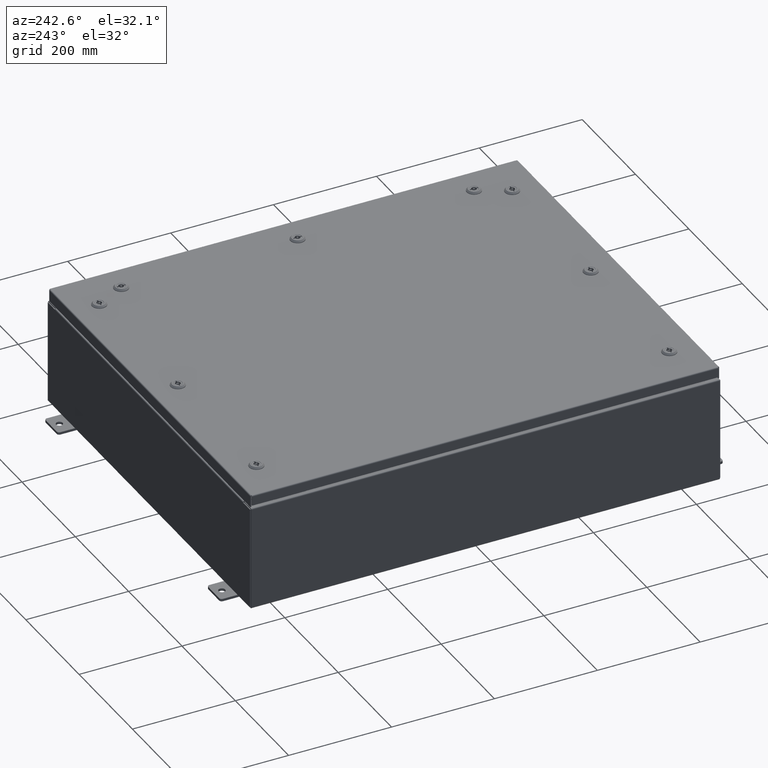
[diagram: clean part render]
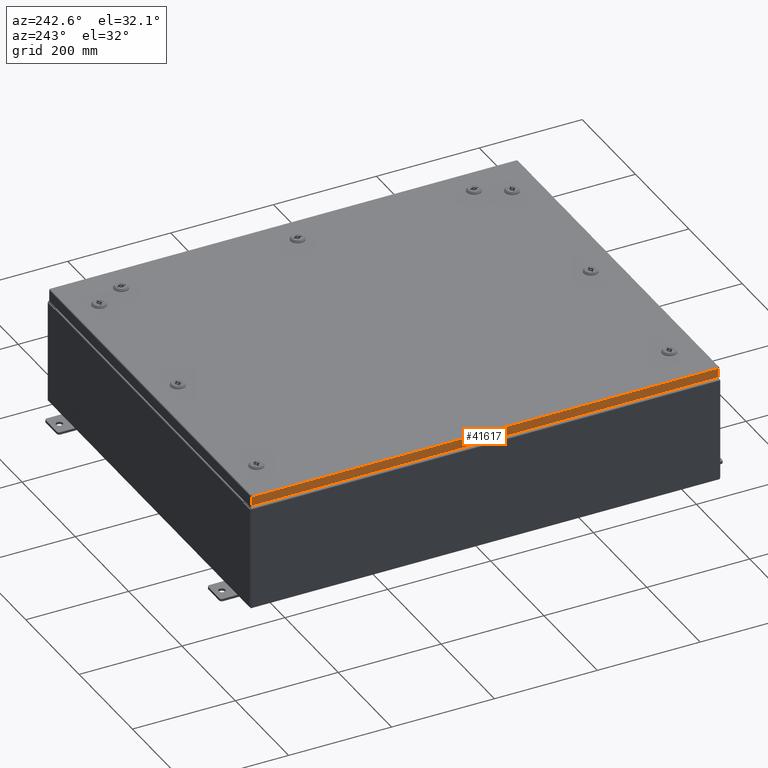
[diagram: same view with one face highlighted and labeled with its STEP entity id]
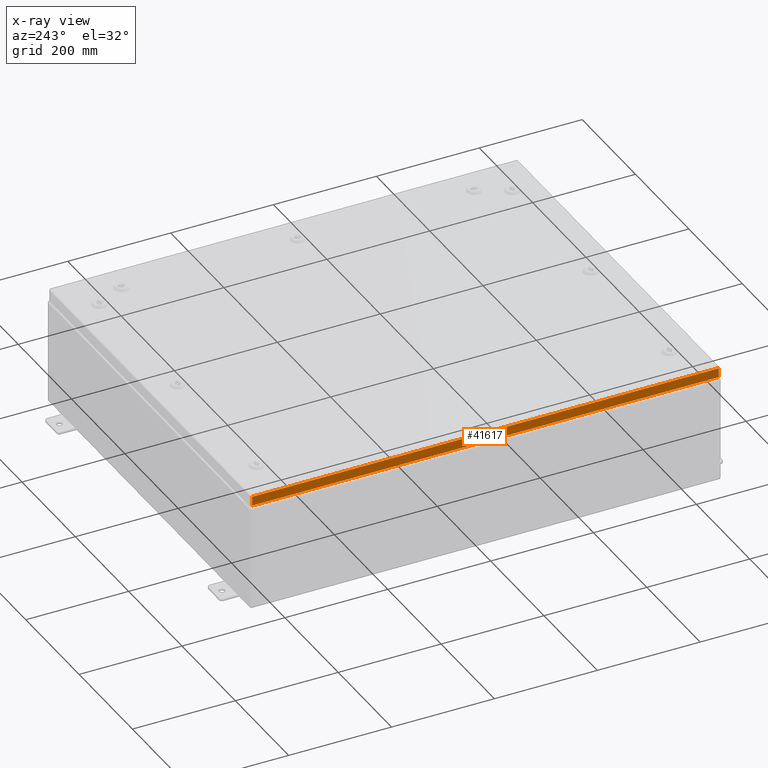
[diagram: x-ray of the same camera — body ghosted, the highlighted face saturated]
A machine part, auxiliary view. The second image highlights one B-rep face of the part: STEP entity #41617.
The next image is the same camera in x-ray: the body ghosted, the highlighted face saturated — about 0% of this face is hidden behind the body in this view.
In plain terms, the highlighted planar face has unit normal (1, 0, -0).
Its self-contained STEP definition (entity closure, byte-faithful):
#2132 = DIRECTION ( 'NONE',  ( 1.000000000000000000, 3.696729780873900900E-031, -3.034122441942816500E-015 ) ) ;
#4301 = DIRECTION ( 'NONE',  ( -4.379057701015054300E-047, 1.000000000000000000, 1.218385167906012900E-016 ) ) ;
#6069 = VECTOR ( 'NONE', #19628, 39.37007874015748100 ) ;
#7296 = EDGE_CURVE ( 'NONE', #50486, #60710, #38860, .T. ) ;
#9512 = ORIENTED_EDGE ( 'NONE', *, *, #32842, .F. ) ;
#11462 = EDGE_CURVE ( 'NONE', #50486, #41567, #21168, .T. ) ;
#13489 = VECTOR ( 'NONE', #17901, 39.37007874015748100 ) ;
#14229 = LINE ( 'NONE', #34263, #56430 ) ;
#14799 = LINE ( 'NONE', #39862, #26685 ) ;
#17901 = DIRECTION ( 'NONE',  ( 3.696729780873900900E-031, -1.000000000000000000, -1.089726516288665400E-045 ) ) ;
#19628 = DIRECTION ( 'NONE',  ( -3.034122441942816500E-015, 6.982962677686267500E-015, -1.000000000000000000 ) ) ;
#19968 = CARTESIAN_POINT ( 'NONE',  ( -14.93750000000000200, -17.93750000000000000, -0.08770000000000004200 ) ) ;
#21168 = LINE ( 'NONE', #50379, #6069 ) ;
#22909 = ORIENTED_EDGE ( 'NONE', *, *, #63815, .F. ) ;
#26337 = FACE_OUTER_BOUND ( 'NONE', #46528, .T. ) ;
#26685 = VECTOR ( 'NONE', #4301, 39.37007874015748100 ) ;
#28162 = ORIENTED_EDGE ( 'NONE', *, *, #11462, .T. ) ;
#31272 = ORIENTED_EDGE ( 'NONE', *, *, #7296, .F. ) ;
#32558 = CARTESIAN_POINT ( 'NONE',  ( -14.93750000000000200, -5.521990110180389400E-030, 4.558301763253240900E-014 ) ) ;
#32842 = EDGE_CURVE ( 'NONE', #60710, #65368, #14229, .T. ) ;
#34263 = CARTESIAN_POINT ( 'NONE',  ( -14.93750000000000200, -17.84865786437627100, -0.07469999999999976700 ) ) ;
#37227 = CARTESIAN_POINT ( 'NONE',  ( -14.93750000000000400, 17.84865786437627500, -0.7949999999999954900 ) ) ;
#37668 = DIRECTION ( 'NONE',  ( -3.034122441942816500E-015, 0.0000000000000000000, -1.000000000000000000 ) ) ;
#38860 = LINE ( 'NONE', #19968, #13489 ) ;
#39862 = CARTESIAN_POINT ( 'NONE',  ( -14.93750000000000400, -17.93750000000000000, -0.7949999999999997100 ) ) ;
#41567 = VERTEX_POINT ( 'NONE', #37227 ) ;
#41617 = ADVANCED_FACE ( 'NONE', ( #26337 ), #63078, .F. ) ;
#46528 = EDGE_LOOP ( 'NONE', ( #31272, #28162, #22909, #9512 ) ) ;
#47498 = CARTESIAN_POINT ( 'NONE',  ( -14.93750000000000200, -17.84865786437626800, -0.08770000000000007000 ) ) ;
#50379 = CARTESIAN_POINT ( 'NONE',  ( -14.93750000000000200, 17.84865786437626800, 1.702195293462633700E-013 ) ) ;
#50486 = VERTEX_POINT ( 'NONE', #53515 ) ;
#53515 = CARTESIAN_POINT ( 'NONE',  ( -14.93750000000000200, 17.84865786437626800, -0.08770000000000004200 ) ) ;
#56430 = VECTOR ( 'NONE', #64792, 39.37007874015748100 ) ;
#60710 = VERTEX_POINT ( 'NONE', #47498 ) ;
#62063 = CARTESIAN_POINT ( 'NONE',  ( -14.93750000000000400, -17.84865786437626800, -0.7949999999999996000 ) ) ;
#63078 = PLANE ( 'NONE',  #65024 ) ;
#63815 = EDGE_CURVE ( 'NONE', #65368, #41567, #14799, .T. ) ;
#64792 = DIRECTION ( 'NONE',  ( -3.034122441942816500E-015, 6.982962677686267500E-015, -1.000000000000000000 ) ) ;
#65024 = AXIS2_PLACEMENT_3D ( 'NONE', #32558, #2132, #37668 ) ;
#65368 = VERTEX_POINT ( 'NONE', #62063 ) ;